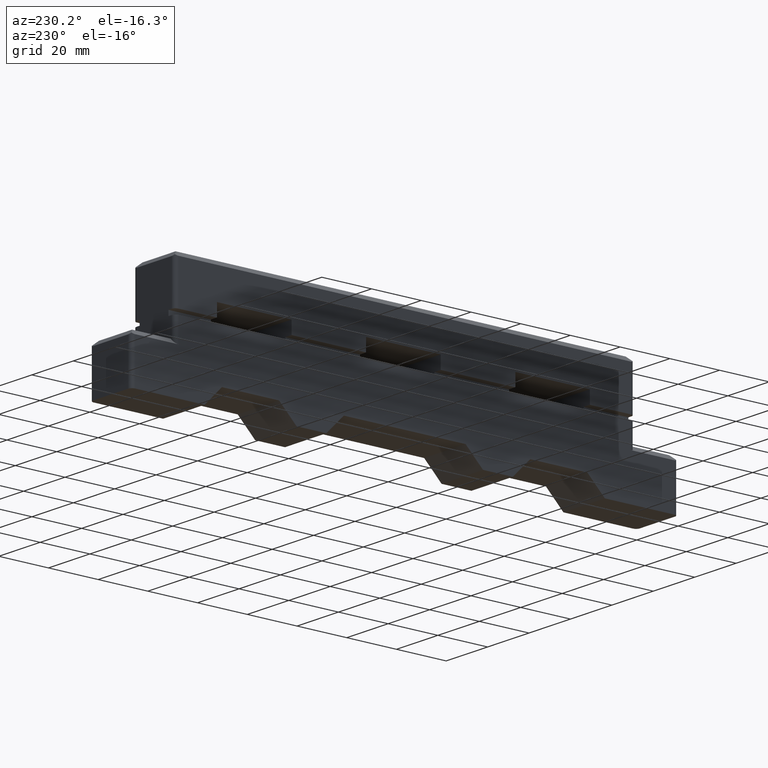
[diagram: clean part render]
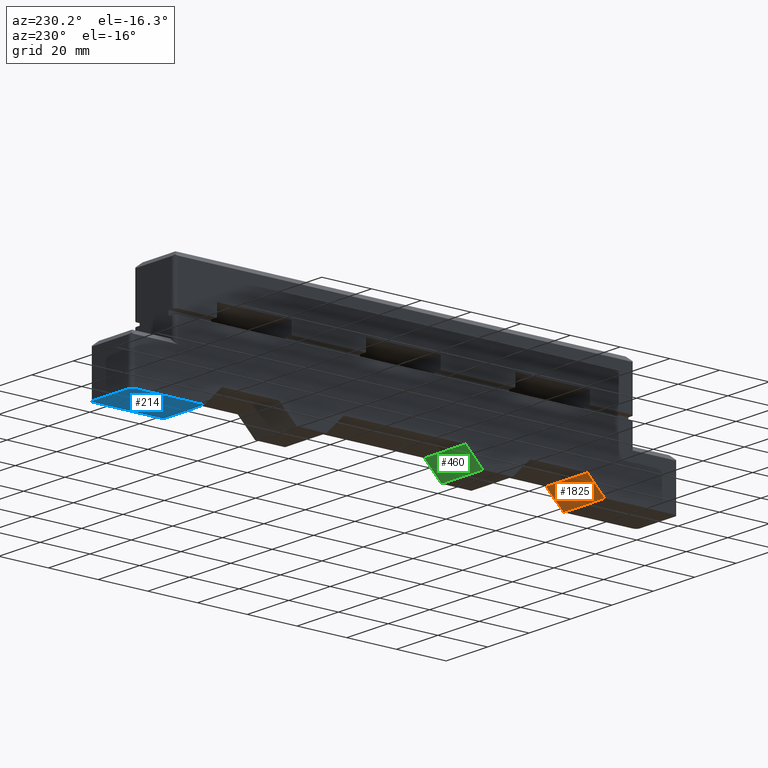
[diagram: same view with three faces highlighted in distinct colors, each labeled with its STEP entity id]
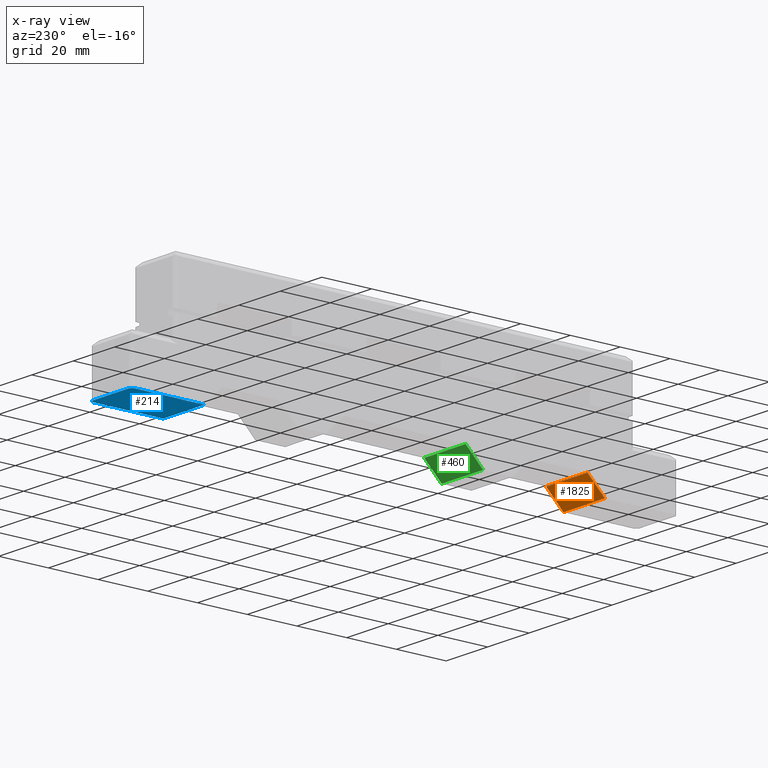
[diagram: x-ray of the same camera — body ghosted, the three highlighted faces saturated]
A machine part, auxiliary view with three faces highlighted in distinct colors.
The next image is the same camera in x-ray (body ghosted, the three faces saturated) — at least one of them is partly hidden behind the body in this view.
Their STEP definitions:

[orange] entity #1825 — the highlighted planar face has unit normal (-0, 0.7071, -0.7071).
#121 = VERTEX_POINT ( 'NONE', #1466 ) ;
#148 = VECTOR ( 'NONE', #781, 1000.000000000000000 ) ;
#407 = CARTESIAN_POINT ( 'NONE',  ( 29.50000000000000000, 0.0000000000000000000, -20.00000000000000000 ) ) ;
#465 = CARTESIAN_POINT ( 'NONE',  ( 29.50000000000000000, 0.0000000000000000000, 0.0000000000000000000 ) ) ;
#512 = CARTESIAN_POINT ( 'NONE',  ( 36.50000000000000000, 7.000000000000000000, -20.00000000000000000 ) ) ;
#524 = CARTESIAN_POINT ( 'NONE',  ( 29.50000000000000000, 0.0000000000000000000, -20.00000000000000000 ) ) ;
#616 = ORIENTED_EDGE ( 'NONE', *, *, #2553, .T. ) ;
#743 = ORIENTED_EDGE ( 'NONE', *, *, #2044, .F. ) ;
#781 = DIRECTION ( 'NONE',  ( 0.0000000000000000000, 0.0000000000000000000, 1.000000000000000000 ) ) ;
#1176 = DIRECTION ( 'NONE',  ( 0.7071067811865490200, -0.7071067811865461300, 0.0000000000000000000 ) ) ;
#1359 = CARTESIAN_POINT ( 'NONE',  ( 29.50000000000000000, 0.0000000000000000000, -20.00000000000000000 ) ) ;
#1420 = VECTOR ( 'NONE', #2646, 1000.000000000000100 ) ;
#1451 = VERTEX_POINT ( 'NONE', #2221 ) ;
#1466 = CARTESIAN_POINT ( 'NONE',  ( 36.50000000000000000, 7.000000000000000000, 0.0000000000000000000 ) ) ;
#1528 = ORIENTED_EDGE ( 'NONE', *, *, #2986, .T. ) ;
#1549 = AXIS2_PLACEMENT_3D ( 'NONE', #407, #1176, #1895 ) ;
#1561 = VECTOR ( 'NONE', #2429, 1000.000000000000000 ) ;
#1597 = ORIENTED_EDGE ( 'NONE', *, *, #1928, .F. ) ;
#1701 = EDGE_LOOP ( 'NONE', ( #1597, #743, #1528, #616 ) ) ;
#1717 = LINE ( 'NONE', #2588, #3119 ) ;
#1825 = ADVANCED_FACE ( 'NONE', ( #2786 ), #2839, .T. ) ;
#1895 = DIRECTION ( 'NONE',  ( 0.7071067811865460200, 0.7071067811865489100, 0.0000000000000000000 ) ) ;
#1928 = EDGE_CURVE ( 'NONE', #2372, #121, #3145, .T. ) ;
#2026 = LINE ( 'NONE', #524, #148 ) ;
#2044 = EDGE_CURVE ( 'NONE', #2307, #2372, #2026, .T. ) ;
#2221 = CARTESIAN_POINT ( 'NONE',  ( 36.50000000000000000, 7.000000000000000000, -20.00000000000000000 ) ) ;
#2274 = LINE ( 'NONE', #512, #1561 ) ;
#2307 = VERTEX_POINT ( 'NONE', #1359 ) ;
#2366 = DIRECTION ( 'NONE',  ( 0.7071067811865460200, 0.7071067811865489100, 0.0000000000000000000 ) ) ;
#2372 = VERTEX_POINT ( 'NONE', #2561 ) ;
#2429 = DIRECTION ( 'NONE',  ( 0.0000000000000000000, 0.0000000000000000000, 1.000000000000000000 ) ) ;
#2553 = EDGE_CURVE ( 'NONE', #1451, #121, #2274, .T. ) ;
#2561 = CARTESIAN_POINT ( 'NONE',  ( 29.50000000000000000, 0.0000000000000000000, 0.0000000000000000000 ) ) ;
#2588 = CARTESIAN_POINT ( 'NONE',  ( 29.50000000000000000, 0.0000000000000000000, -20.00000000000000000 ) ) ;
#2646 = DIRECTION ( 'NONE',  ( 0.7071067811865460200, 0.7071067811865489100, 0.0000000000000000000 ) ) ;
#2786 = FACE_OUTER_BOUND ( 'NONE', #1701, .T. ) ;
#2839 = PLANE ( 'NONE',  #1549 ) ;
#2986 = EDGE_CURVE ( 'NONE', #2307, #1451, #1717, .T. ) ;
#3119 = VECTOR ( 'NONE', #2366, 1000.000000000000100 ) ;
#3145 = LINE ( 'NONE', #465, #1420 ) ;

[blue] entity #214 — the highlighted planar face has unit normal (-0, -0, -1).
#4 = EDGE_CURVE ( 'NONE', #3047, #240, #1085, .T. ) ;
#45 = DIRECTION ( 'NONE',  ( 1.000000000000000000, -6.659147604321950200E-031, 0.0000000000000000000 ) ) ;
#140 = ORIENTED_EDGE ( 'NONE', *, *, #2909, .T. ) ;
#162 = CARTESIAN_POINT ( 'NONE',  ( 218.5000000000000000, 9.988721406482938900E-031, 0.0000000000000000000 ) ) ;
#191 = EDGE_CURVE ( 'NONE', #1464, #2399, #2064, .T. ) ;
#194 = CARTESIAN_POINT ( 'NONE',  ( 218.5000000000000000, 9.988721406482938900E-031, -18.50000000000000000 ) ) ;
#214 = ADVANCED_FACE ( 'NONE', ( #853 ), #2717, .T. ) ;
#240 = VERTEX_POINT ( 'NONE', #1982 ) ;
#345 = VECTOR ( 'NONE', #1361, 1000.000000000000000 ) ;
#467 = CARTESIAN_POINT ( 'NONE',  ( 190.5000000000000000, 1.964448543274980000E-029, -20.00000000000000000 ) ) ;
#784 = CARTESIAN_POINT ( 'NONE',  ( 218.5000000000000000, 0.0000000000000000000, -1.500000000000000000 ) ) ;
#848 = EDGE_LOOP ( 'NONE', ( #2787, #1727, #1194, #2581, #140, #2015 ) ) ;
#853 = FACE_OUTER_BOUND ( 'NONE', #848, .T. ) ;
#906 = DIRECTION ( 'NONE',  ( 0.0000000000000000000, 0.0000000000000000000, 1.000000000000000000 ) ) ;
#954 = DIRECTION ( 'NONE',  ( 1.000000000000000000, -6.659147604321944100E-031, 0.0000000000000000000 ) ) ;
#1017 = CARTESIAN_POINT ( 'NONE',  ( 190.5000000000000000, 1.964448543274980000E-029, -20.00000000000000000 ) ) ;
#1078 = DIRECTION ( 'NONE',  ( 1.000000000000000000, -6.659147604321950200E-031, 0.0000000000000000000 ) ) ;
#1085 = LINE ( 'NONE', #2851, #345 ) ;
#1194 = ORIENTED_EDGE ( 'NONE', *, *, #2779, .F. ) ;
#1240 = CARTESIAN_POINT ( 'NONE',  ( 218.5000000000000000, 9.988721406482938900E-031, -20.00000000000000000 ) ) ;
#1262 = DIRECTION ( 'NONE',  ( -6.659147604321950200E-031, -1.000000000000000000, 0.0000000000000000000 ) ) ;
#1289 = CARTESIAN_POINT ( 'NONE',  ( 190.5000000000000000, 1.964448543274980000E-029, 0.0000000000000000000 ) ) ;
#1361 = DIRECTION ( 'NONE',  ( 0.0000000000000000000, 0.0000000000000000000, 1.000000000000000000 ) ) ;
#1386 = VERTEX_POINT ( 'NONE', #2988 ) ;
#1388 = VERTEX_POINT ( 'NONE', #1240 ) ;
#1464 = VERTEX_POINT ( 'NONE', #2710 ) ;
#1543 = DIRECTION ( 'NONE',  ( 1.000000000000000000, -6.659147604321950200E-031, 0.0000000000000000000 ) ) ;
#1556 = LINE ( 'NONE', #1289, #2043 ) ;
#1640 = AXIS2_PLACEMENT_3D ( 'NONE', #784, #1262, #2473 ) ;
#1659 = EDGE_CURVE ( 'NONE', #1386, #1464, #3049, .T. ) ;
#1727 = ORIENTED_EDGE ( 'NONE', *, *, #191, .T. ) ;
#1843 = CARTESIAN_POINT ( 'NONE',  ( 220.0000000000000000, 0.0000000000000000000, -20.00000000000000000 ) ) ;
#1861 = LINE ( 'NONE', #2512, #2198 ) ;
#1968 = AXIS2_PLACEMENT_3D ( 'NONE', #1017, #2220, #45 ) ;
#1982 = CARTESIAN_POINT ( 'NONE',  ( 190.5000000000000000, 1.964448543274980000E-029, 0.0000000000000000000 ) ) ;
#2015 = ORIENTED_EDGE ( 'NONE', *, *, #3086, .T. ) ;
#2043 = VECTOR ( 'NONE', #1543, 1000.000000000000000 ) ;
#2064 = CIRCLE ( 'NONE', #1640, 1.500000000000001300 ) ;
#2198 = VECTOR ( 'NONE', #1078, 1000.000000000000000 ) ;
#2220 = DIRECTION ( 'NONE',  ( -6.659147604321950200E-031, -1.000000000000000000, 0.0000000000000000000 ) ) ;
#2393 = VECTOR ( 'NONE', #906, 1000.000000000000000 ) ;
#2399 = VERTEX_POINT ( 'NONE', #162 ) ;
#2473 = DIRECTION ( 'NONE',  ( 1.000000000000000000, -6.659147604321944100E-031, 0.0000000000000000000 ) ) ;
#2512 = CARTESIAN_POINT ( 'NONE',  ( 190.5000000000000000, 1.964448543274980000E-029, -20.00000000000000000 ) ) ;
#2581 = ORIENTED_EDGE ( 'NONE', *, *, #4, .F. ) ;
#2710 = CARTESIAN_POINT ( 'NONE',  ( 220.0000000000000000, 0.0000000000000000000, -1.500000000000000000 ) ) ;
#2717 = PLANE ( 'NONE',  #1968 ) ;
#2779 = EDGE_CURVE ( 'NONE', #240, #2399, #1556, .T. ) ;
#2787 = ORIENTED_EDGE ( 'NONE', *, *, #1659, .T. ) ;
#2851 = CARTESIAN_POINT ( 'NONE',  ( 190.5000000000000000, 1.964448543274980000E-029, -20.00000000000000000 ) ) ;
#2909 = EDGE_CURVE ( 'NONE', #3047, #1388, #1861, .T. ) ;
#2988 = CARTESIAN_POINT ( 'NONE',  ( 220.0000000000000000, 0.0000000000000000000, -18.50000000000000000 ) ) ;
#3035 = AXIS2_PLACEMENT_3D ( 'NONE', #194, #3118, #954 ) ;
#3047 = VERTEX_POINT ( 'NONE', #467 ) ;
#3049 = LINE ( 'NONE', #1843, #2393 ) ;
#3086 = EDGE_CURVE ( 'NONE', #1388, #1386, #3160, .T. ) ;
#3118 = DIRECTION ( 'NONE',  ( -6.659147604321950200E-031, -1.000000000000000000, 0.0000000000000000000 ) ) ;
#3160 = CIRCLE ( 'NONE', #3035, 1.500000000000001300 ) ;

[green] entity #460 — the highlighted planar face has unit normal (-0, 0.7071, -0.7071).
#84 = CARTESIAN_POINT ( 'NONE',  ( 85.50000000000000000, 7.000000000000000000, 0.0000000000000000000 ) ) ;
#193 = VECTOR ( 'NONE', #2621, 1000.000000000000000 ) ;
#247 = DIRECTION ( 'NONE',  ( 0.0000000000000000000, 0.0000000000000000000, 1.000000000000000000 ) ) ;
#460 = ADVANCED_FACE ( 'NONE', ( #2508 ), #664, .T. ) ;
#463 = CARTESIAN_POINT ( 'NONE',  ( 78.50000000000000000, 3.724267029958820100E-029, 0.0000000000000000000 ) ) ;
#515 = VECTOR ( 'NONE', #247, 1000.000000000000000 ) ;
#522 = VERTEX_POINT ( 'NONE', #953 ) ;
#531 = ORIENTED_EDGE ( 'NONE', *, *, #2003, .F. ) ;
#664 = PLANE ( 'NONE',  #2112 ) ;
#703 = VERTEX_POINT ( 'NONE', #3174 ) ;
#870 = ORIENTED_EDGE ( 'NONE', *, *, #1873, .T. ) ;
#953 = CARTESIAN_POINT ( 'NONE',  ( 85.50000000000000000, 7.000000000000000000, -20.00000000000000000 ) ) ;
#1037 = ORIENTED_EDGE ( 'NONE', *, *, #2414, .F. ) ;
#1154 = LINE ( 'NONE', #3183, #515 ) ;
#1242 = VECTOR ( 'NONE', #2607, 1000.000000000000100 ) ;
#1350 = EDGE_CURVE ( 'NONE', #703, #522, #1364, .T. ) ;
#1364 = LINE ( 'NONE', #1684, #1866 ) ;
#1365 = DIRECTION ( 'NONE',  ( 0.7071067811865461300, -0.7071067811865490200, 0.0000000000000000000 ) ) ;
#1393 = CARTESIAN_POINT ( 'NONE',  ( 85.50000000000000000, 7.000000000000000000, -20.00000000000000000 ) ) ;
#1429 = VERTEX_POINT ( 'NONE', #1530 ) ;
#1530 = CARTESIAN_POINT ( 'NONE',  ( 78.50000000000000000, 3.724267029958820100E-029, 0.0000000000000000000 ) ) ;
#1684 = CARTESIAN_POINT ( 'NONE',  ( 78.50000000000000000, 3.724267029958820100E-029, -20.00000000000000000 ) ) ;
#1758 = ORIENTED_EDGE ( 'NONE', *, *, #1350, .T. ) ;
#1848 = LINE ( 'NONE', #1393, #193 ) ;
#1866 = VECTOR ( 'NONE', #2927, 1000.000000000000100 ) ;
#1869 = CARTESIAN_POINT ( 'NONE',  ( 78.50000000000000000, 3.724267029958820100E-029, -20.00000000000000000 ) ) ;
#1873 = EDGE_CURVE ( 'NONE', #522, #2181, #1848, .T. ) ;
#1875 = DIRECTION ( 'NONE',  ( 0.7071067811865489100, 0.7071067811865460200, 0.0000000000000000000 ) ) ;
#2003 = EDGE_CURVE ( 'NONE', #703, #1429, #1154, .T. ) ;
#2032 = EDGE_LOOP ( 'NONE', ( #1037, #531, #1758, #870 ) ) ;
#2112 = AXIS2_PLACEMENT_3D ( 'NONE', #1869, #1365, #1875 ) ;
#2181 = VERTEX_POINT ( 'NONE', #84 ) ;
#2381 = LINE ( 'NONE', #463, #1242 ) ;
#2414 = EDGE_CURVE ( 'NONE', #1429, #2181, #2381, .T. ) ;
#2508 = FACE_OUTER_BOUND ( 'NONE', #2032, .T. ) ;
#2607 = DIRECTION ( 'NONE',  ( 0.7071067811865489100, 0.7071067811865460200, 0.0000000000000000000 ) ) ;
#2621 = DIRECTION ( 'NONE',  ( 0.0000000000000000000, 0.0000000000000000000, 1.000000000000000000 ) ) ;
#2927 = DIRECTION ( 'NONE',  ( 0.7071067811865489100, 0.7071067811865460200, 0.0000000000000000000 ) ) ;
#3174 = CARTESIAN_POINT ( 'NONE',  ( 78.50000000000000000, 3.724267029958820100E-029, -20.00000000000000000 ) ) ;
#3183 = CARTESIAN_POINT ( 'NONE',  ( 78.50000000000000000, 3.724267029958820100E-029, -20.00000000000000000 ) ) ;